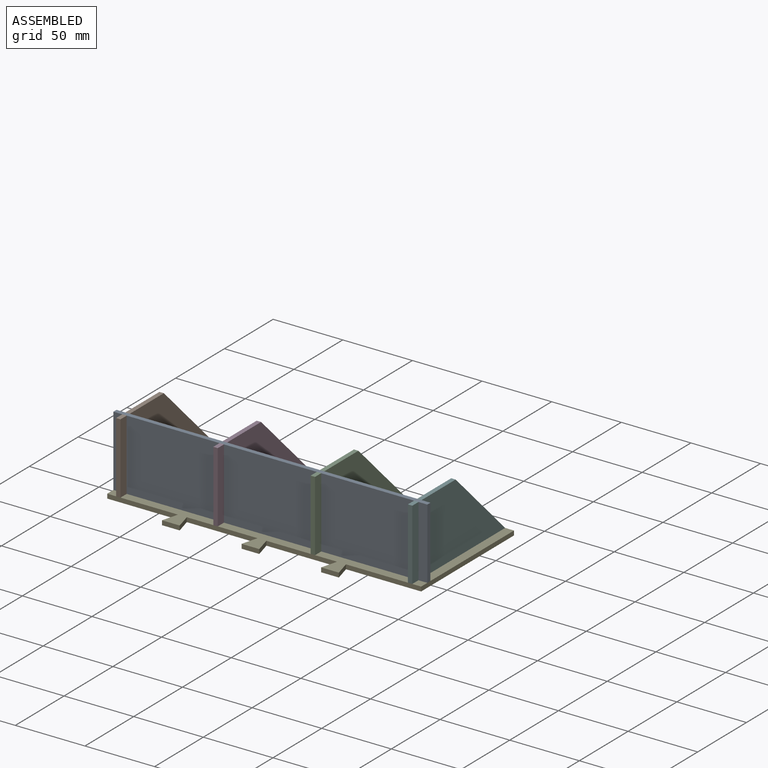
[diagram: assembled view]
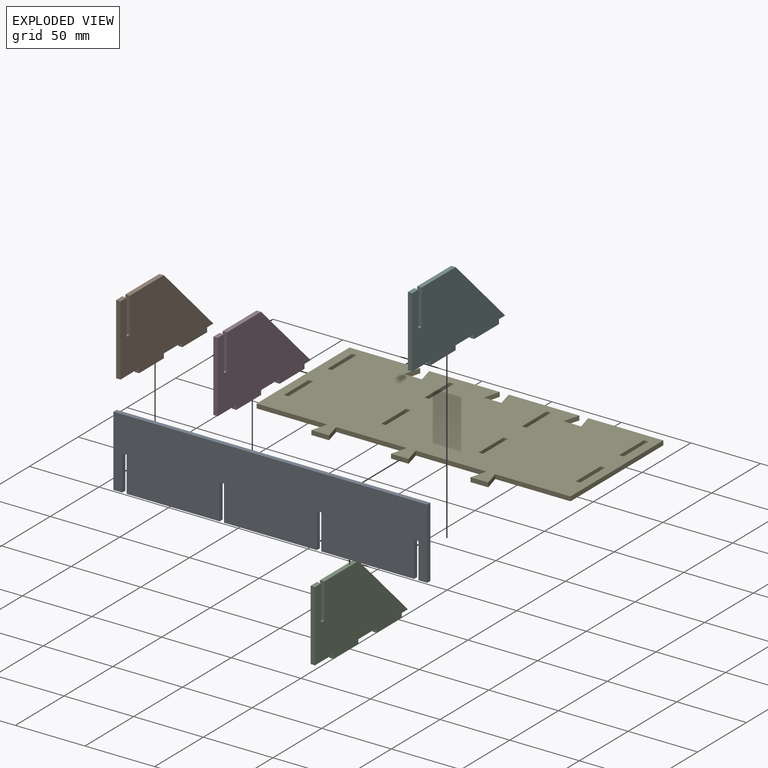
[diagram: exploded view]
GUIDED TOUR — MATED ASSEMBLY (Onshape document ad4fbdfa57b17da3cf891340, AutoMate assembly ad4fbdfa57b17da3cf891340_ecf2326bcfd8ec1f429778cc_b7a0c7b0aa4309209ddc0aee_default)

This assembly has 6 components, labeled P0..P5 below (a component is one placed occurrence of a part; the same part can appear more than once), held together by 2 mates. A mate is a constraint between two components; its type names the relative motion it leaves free:
  FASTENED — locks the two components together rigidly (no relative motion).
Axis/direction vectors are unit vectors and 'through' points are millimeter coordinates, both in the assembly's world frame.

MATES
  1. FASTENED "Fastened 1": P1 <-> P4, direction (0.000, -1.000, 0.000) through (-136.15, -73.71, -41.26) mm
  2. FASTENED "Fastened 2": P0 <-> P1, direction (0.000, 0.000, -1.000) through (-136.15, -84.82, -14.28) mm

ASSEMBLY ORDER
  1. P0 — the base component [order verified]
  2. P5 [order verified]
  3. P4 [order verified]
  4. P3 [order verified]
  5. P2 [order verified]
  6. P1 [order verified]
Order-tag legend:
  [order verified] — this step's position reverses a verified removal order: the component was checked to insert without passing through the ones already placed.

Of the 6 components, 5 carry the full construction recipe — the FeatureScript program that regenerates the part's solid from scratch; the rest are supplied as boundary geometry only.
Each toured component is shown spotlighted twice — in the assembled view, then in the exploded view, where a leader line traces a displaced component back to its assembled socket (saturated green if recipe-attached, orange if geometry-only; every other component desaturated gray) — followed by its recipe or geometry summary and the mates that hold it.
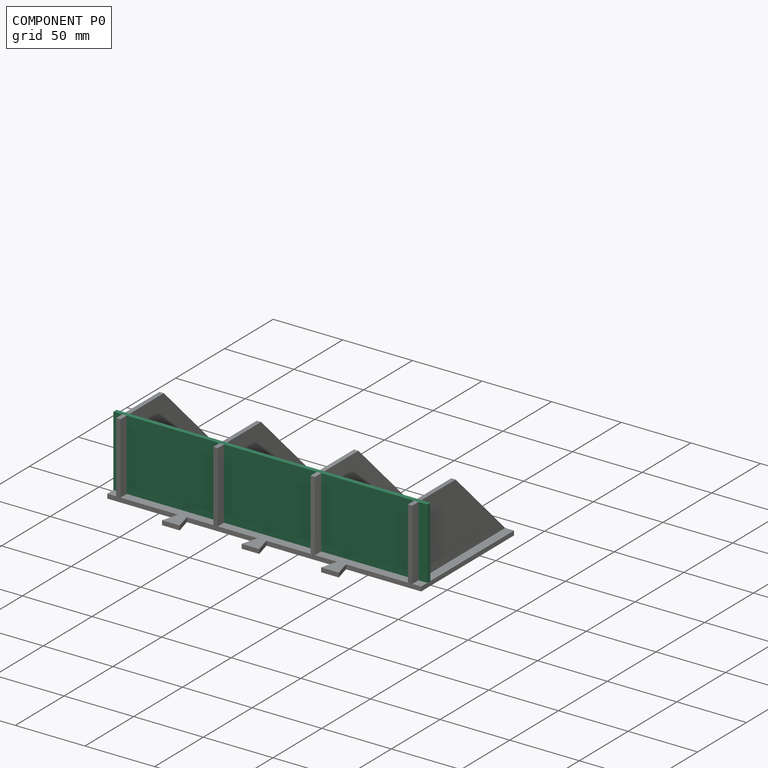
[diagram: component P0 — assembled]
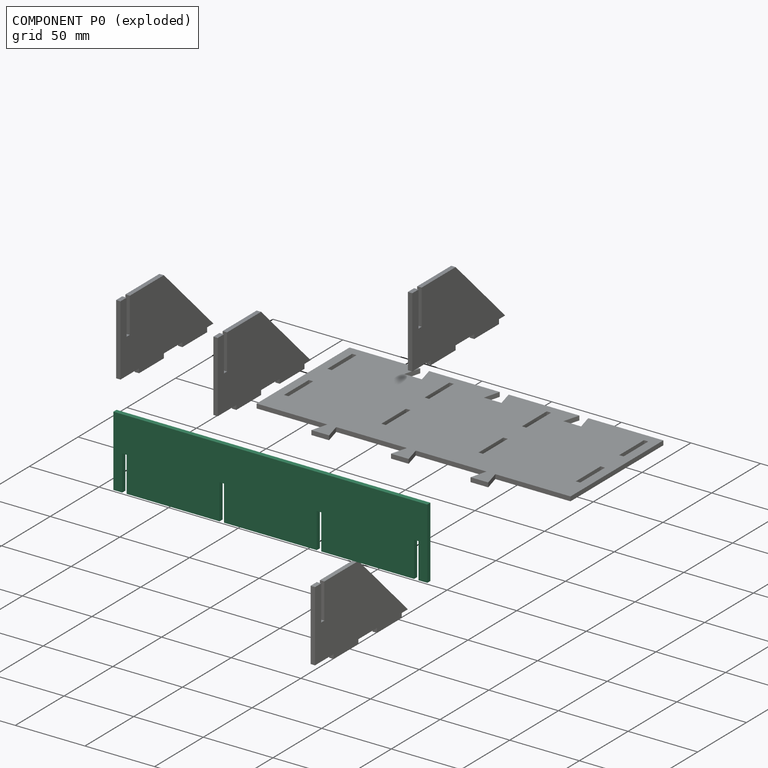
[diagram: component P0 — exploded]
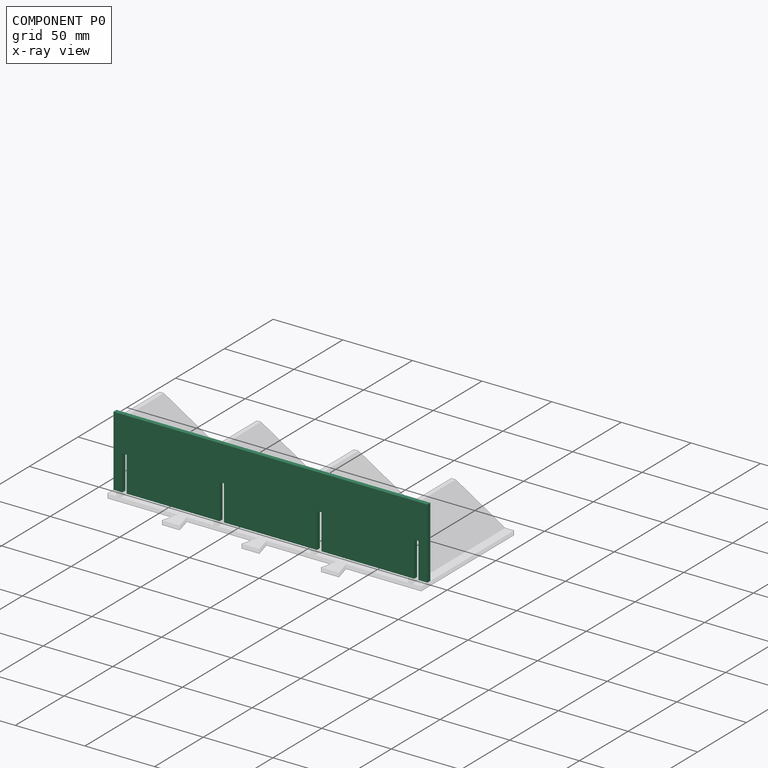
[diagram: component P0 — x-ray view]
COMPONENT P0 — recipe-attached (CADFS 00611595, mesh-verified: the recipe's output STEP matches this component's geometry to below the mesh-comparison resolution (tessellation chordal tolerance ~0.347 mm)).
Held by: FASTENED mate "Fastened 2" to P1.
Construction recipe (FeatureScript — the CAD program that rebuilds this solid; sketch coordinates are in the units given by the * unit suffixes, e.g. mm):

FeatureScript 1511;
import(path : "onshape/std/geometry.fs", version : "1511.0");
import(path : "onshape/std/common.fs", version : "1511.0");
const mm = millimeter;
const VERTEX = EntityType.VERTEX;
const EDGE = EntityType.EDGE;
const FACE = EntityType.FACE;
const BODY = EntityType.BODY;
function v(x, y){return vector(x, y);}
function OD(order){return orderDisambiguation(order);}
function OSD(set){return originalSetDisambiguation(set);}
function TD(topology){return topologyDisambiguation(topology);}
function TDD(query){return trueDependencyDisambiguation(query);}
function sQuery(a, b, c) {return sketchEntityQuery(a, b, c);}

annotation { "Feature Type Name" : "Feature", "Feature Type Description" : "" }
export const myFeature = defineFeature(function(context is Context, id is Id, definition is map)
    precondition{}
    {
        {
            var Q0;
            Q0=qCreatedBy(makeId("Front.planeOp"),FACE);
            var sketch = newSketch(context, id + "F0", { "sketchPlane" : qUnion([Q0])});
            skLineSegment(sketch, "E0.bottom", {"start": v(-112.71, 25.4) * mm, "end": v(112.71, 25.4) * mm});
            skLineSegment(sketch, "E0.top", {"start": v(-112.71, -25.4) * mm, "end": v(112.71, -25.4) * mm});
            skLineSegment(sketch, "E0.left", {"start": v(-112.71, 25.4) * mm, "end": v(-112.71, -25.4) * mm});
            skLineSegment(sketch, "E0.right", {"start": v(112.71, 25.4) * mm, "end": v(112.71, -25.4) * mm});
            skPoint(sketch, "E0.middle", {"position": v(0, 0) * mm});
            skLineSegment(sketch, "E1", {"start": v(-106.36, -25.4) * mm, "end": v(-106.36, 0) * mm});
            skLineSegment(sketch, "E2", {"start": v(-106.36, 0) * mm, "end": v(-103.19, 0) * mm});
            skLineSegment(sketch, "E3", {"start": v(-103.19, 0) * mm, "end": v(-103.19, -25.4) * mm});
            skLineSegment(sketch, "E4", {"start": v(-36.51, -25.4) * mm, "end": v(-36.51, 0) * mm});
            skLineSegment(sketch, "E5", {"start": v(-36.51, 0) * mm, "end": v(-33.34, 0) * mm});
            skLineSegment(sketch, "E6", {"start": v(-33.34, 0) * mm, "end": v(-33.34, -25.4) * mm});
            skLineSegment(sketch, "E7", {"start": v(33.34, -25.4) * mm, "end": v(33.34, 0) * mm});
            skLineSegment(sketch, "E8", {"start": v(33.34, 0) * mm, "end": v(36.51, 0) * mm});
            skLineSegment(sketch, "E9", {"start": v(36.51, 0) * mm, "end": v(36.51, -25.4) * mm});
            skLineSegment(sketch, "E10", {"start": v(103.19, -25.4) * mm, "end": v(103.19, 0) * mm});
            skLineSegment(sketch, "E11", {"start": v(103.19, 0) * mm, "end": v(106.36, 0) * mm});
            skLineSegment(sketch, "E12", {"start": v(106.36, 0) * mm, "end": v(106.36, -25.4) * mm});
            skSolve(sketch);
        }
        {
            var Q0;
            Q0=makeQuery(id+"F0.imprint","IMPRINT",FACE,{"disambiguationData":[TD([[makeQuery(id+"F0.imprint","IMPRINT",EDGE,{"derivedFrom":sQuery(id+"F0.wireOp",EDGE,"E0.bottom")}),-1.0]])]});
            extrude(context, id + "F1", {"entities" : qUnion([Q0]), "depth" : 3.17 * mm, "offsetDistance" : 25.4 * mm});
        }
    });
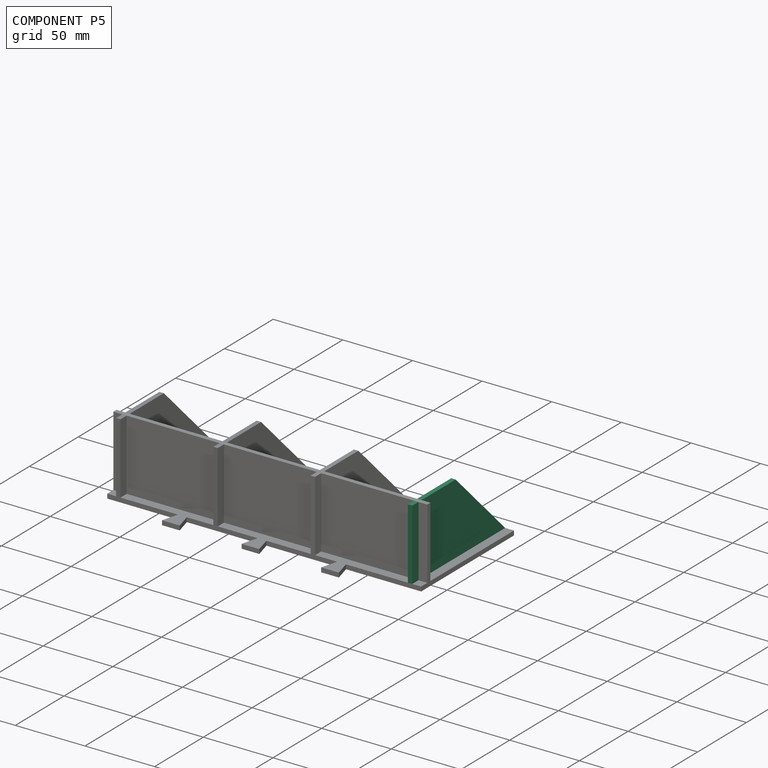
[diagram: component P5 — assembled]
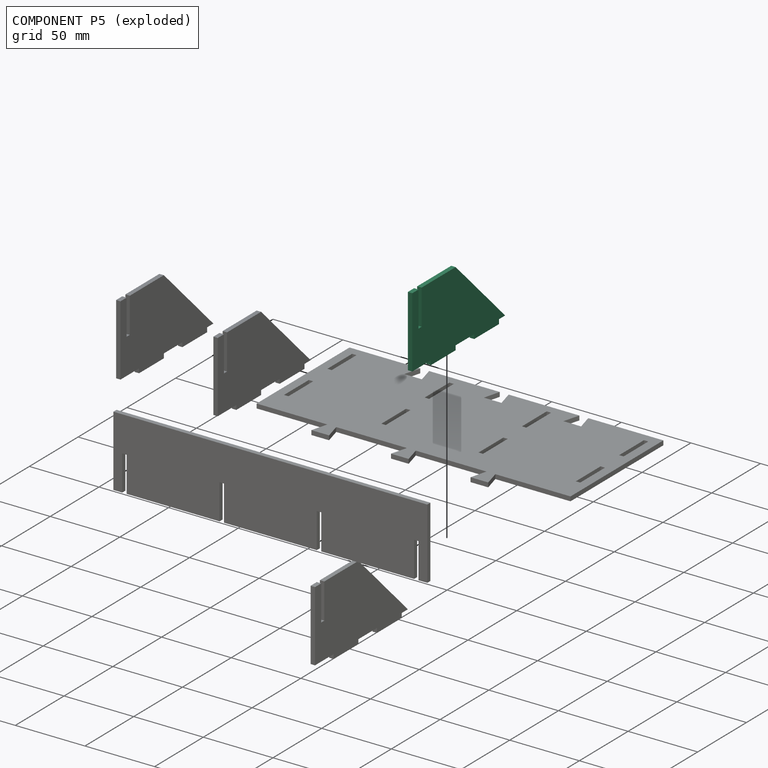
[diagram: component P5 — exploded]
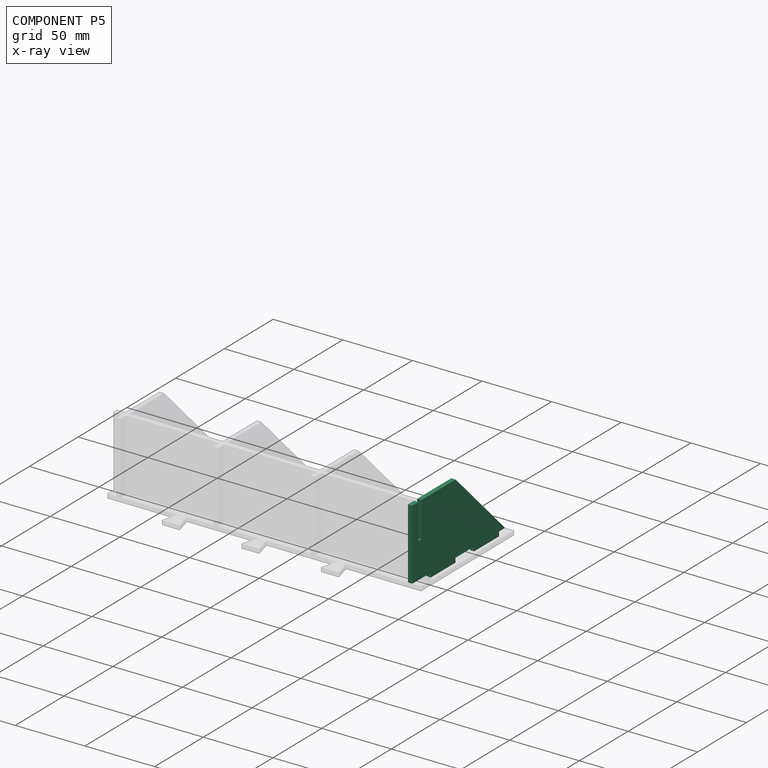
[diagram: component P5 — x-ray view]
COMPONENT P5 — same part as P1 (CADFS 00611596); its construction recipe is shown at P1.
Held by: no mates (free).
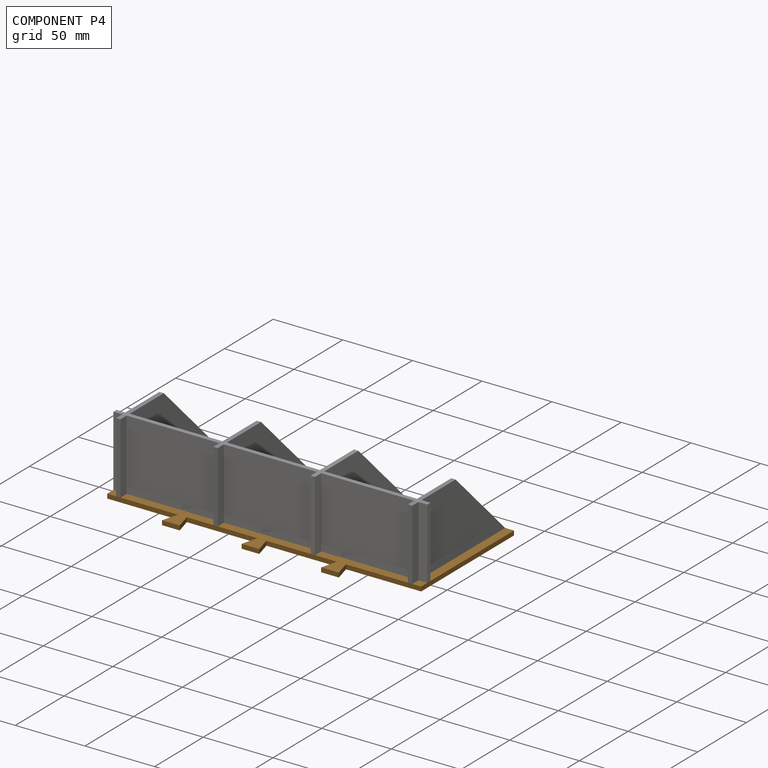
[diagram: component P4 — assembled]
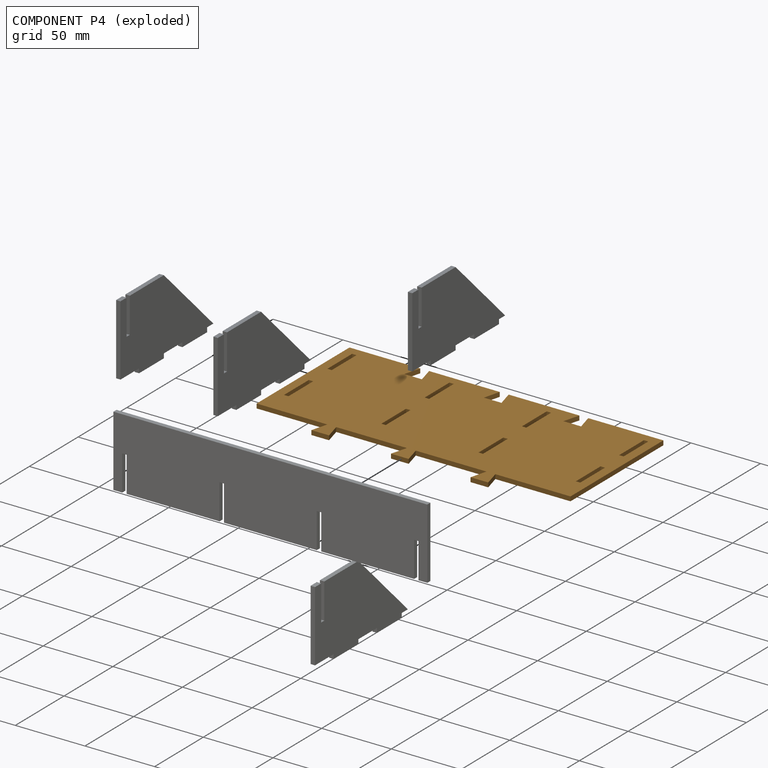
[diagram: component P4 — exploded]
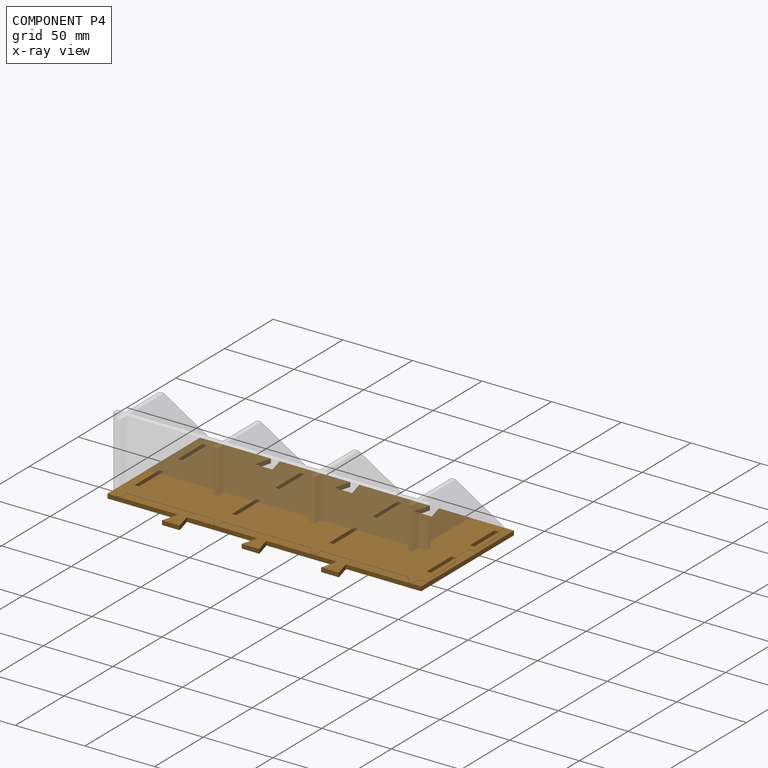
[diagram: component P4 — x-ray view]
COMPONENT P4 — geometry summary (no construction recipe available for this part):
  bounding box: 225.4 x 107.1 x 3.2 mm
  B-rep topology: 1 solid, 62 faces, 360 edges
  volume: 66124 mm^3 (86% of its bounding box)
  symmetry: mirror-symmetric across its z mid-plane
Held by: FASTENED mate "Fastened 1" to P1.
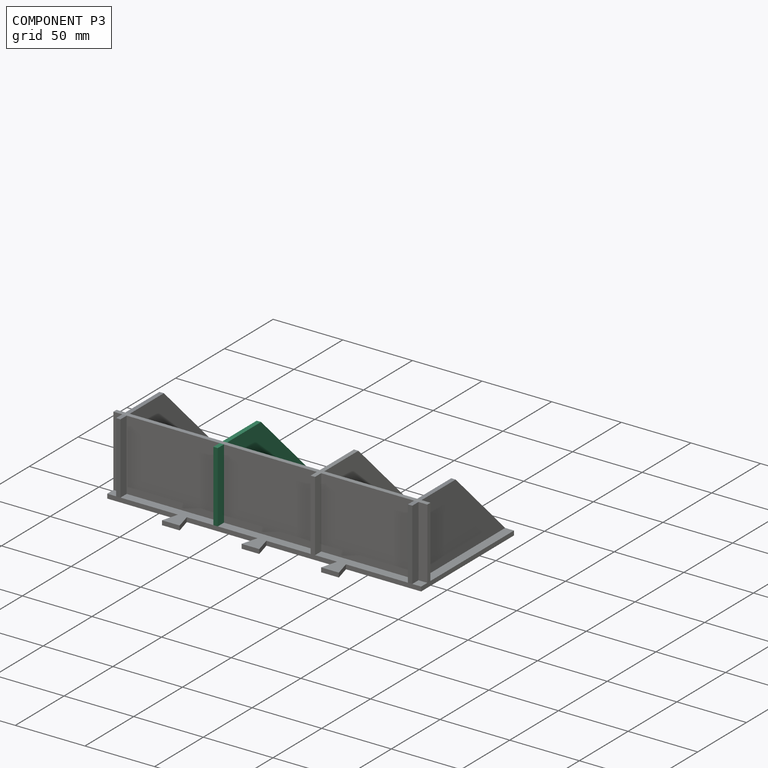
[diagram: component P3 — assembled]
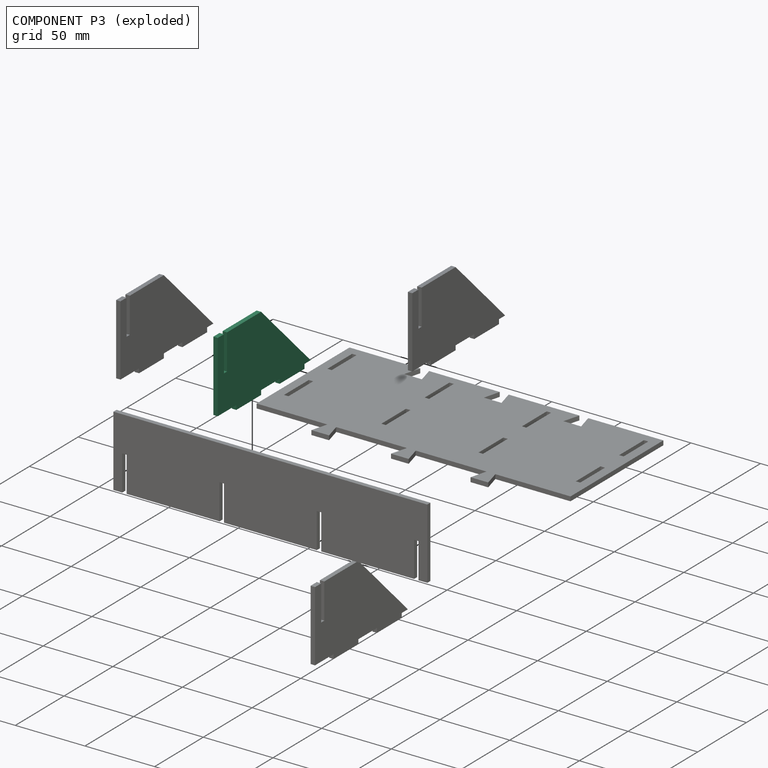
[diagram: component P3 — exploded]
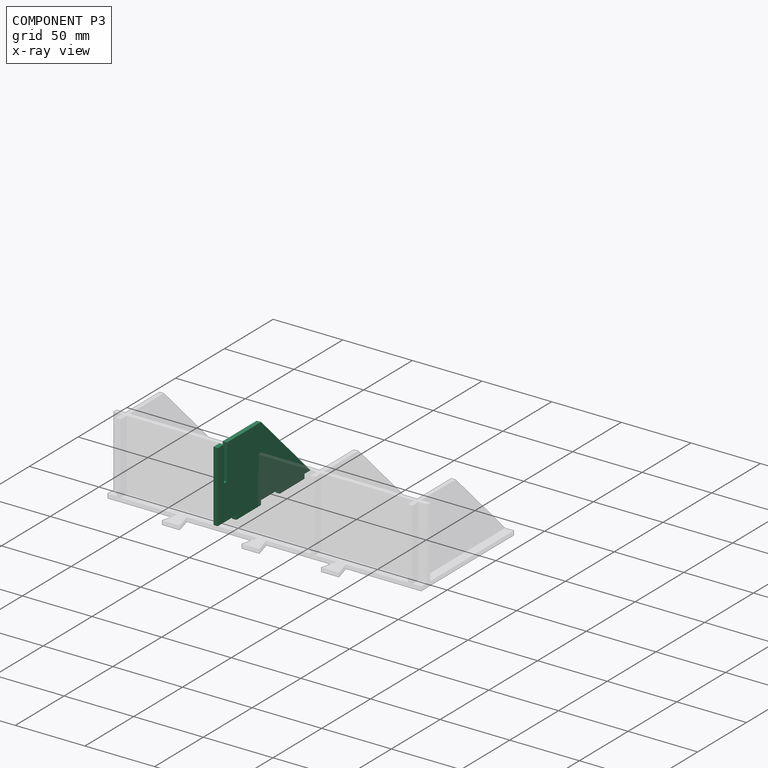
[diagram: component P3 — x-ray view]
COMPONENT P3 — same part as P1 (CADFS 00611596); its construction recipe is shown at P1.
Held by: no mates (free).
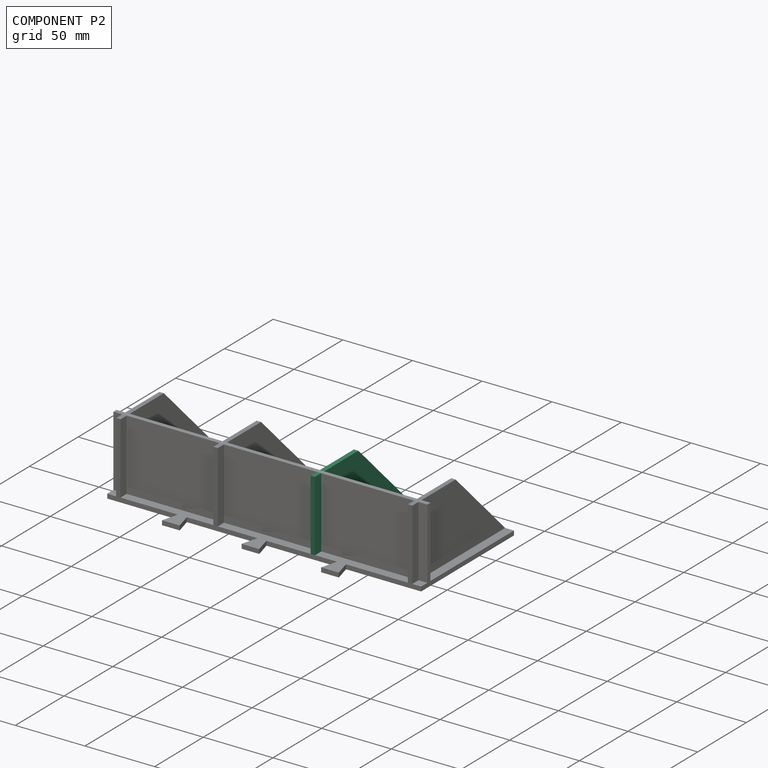
[diagram: component P2 — assembled]
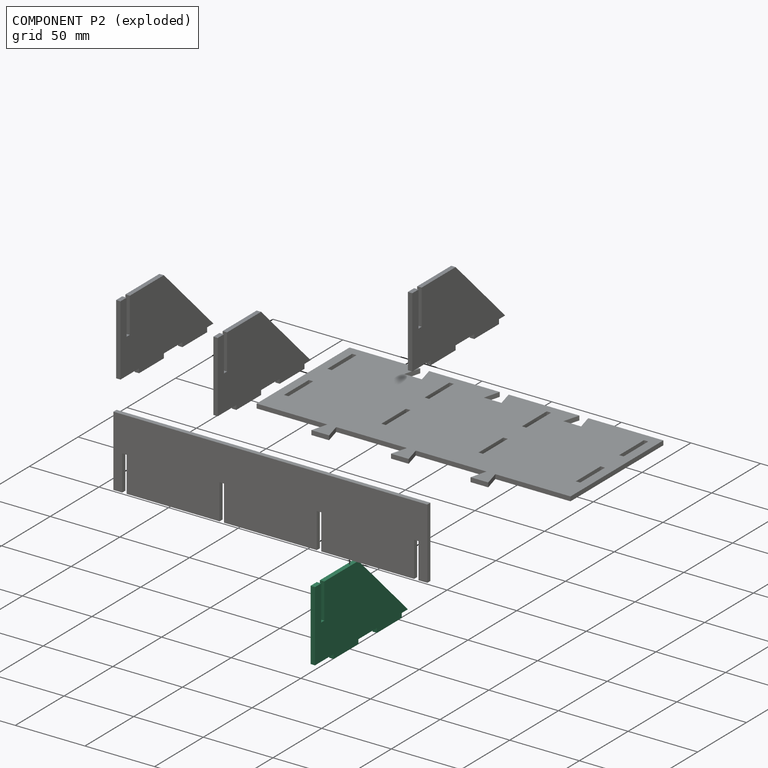
[diagram: component P2 — exploded]
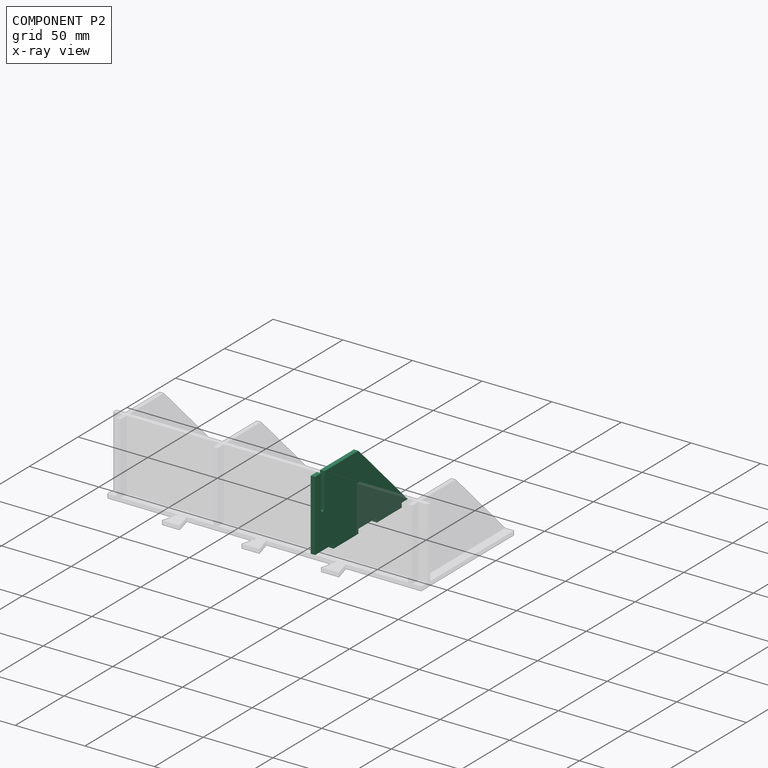
[diagram: component P2 — x-ray view]
COMPONENT P2 — same part as P1 (CADFS 00611596); its construction recipe is shown at P1.
Held by: no mates (free).
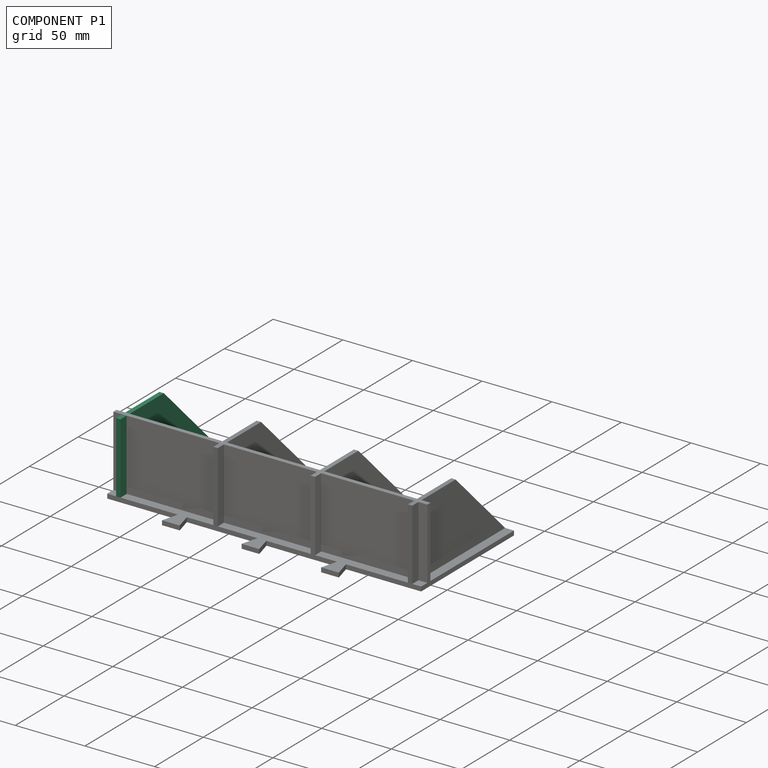
[diagram: component P1 — assembled]
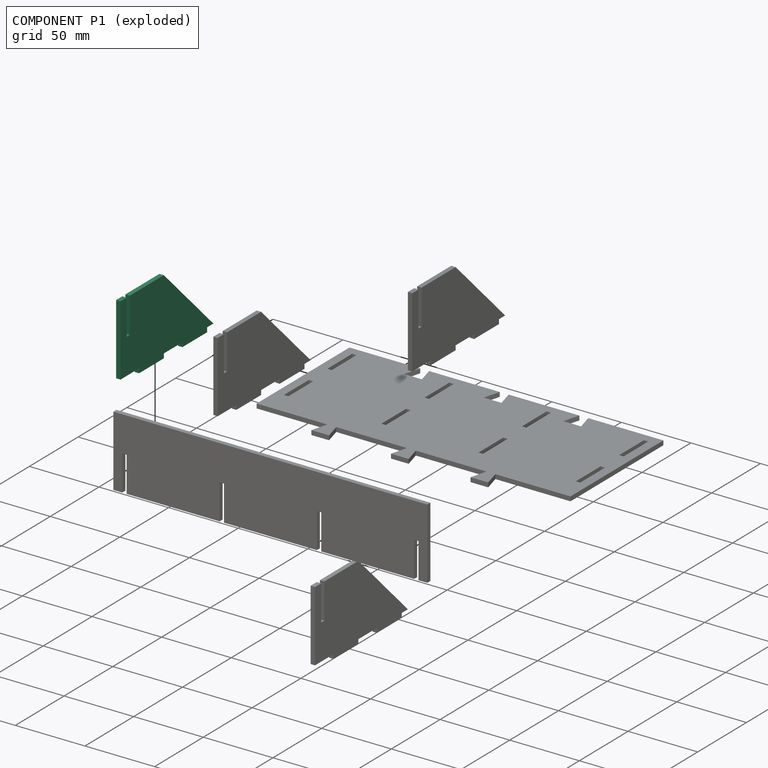
[diagram: component P1 — exploded]
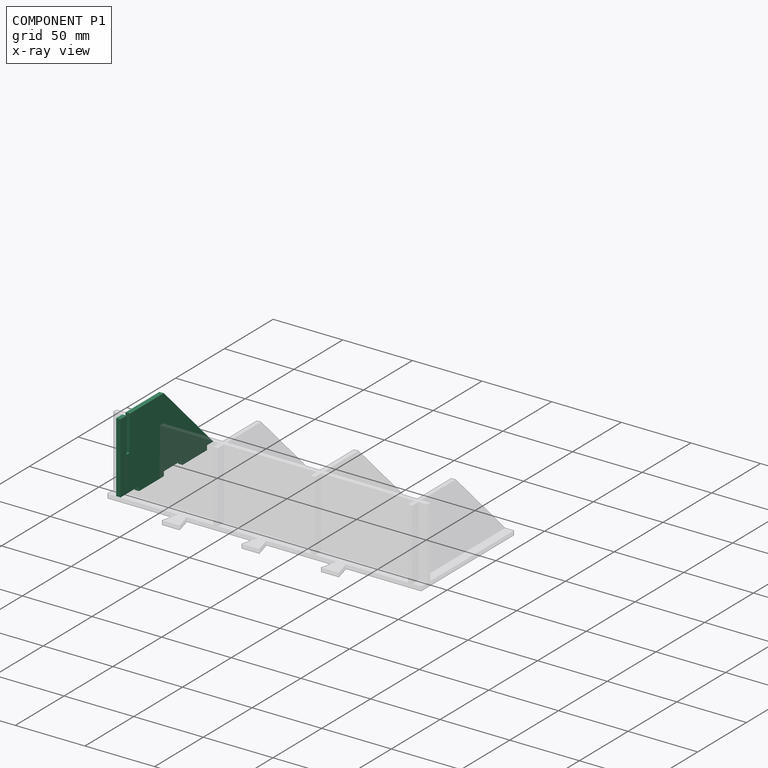
[diagram: component P1 — x-ray view]
COMPONENT P1 — recipe-attached (CADFS 00611596, mesh-verified: the recipe's output STEP matches this component's geometry to below the mesh-comparison resolution (tessellation chordal tolerance ~0.164 mm)).
Held by: FASTENED mate "Fastened 1" to P4; FASTENED mate "Fastened 2" to P0.
Construction recipe (FeatureScript — the CAD program that rebuilds this solid; sketch coordinates are in the units given by the * unit suffixes, e.g. mm):

FeatureScript 1511;
import(path : "onshape/std/geometry.fs", version : "1511.0");
import(path : "onshape/std/common.fs", version : "1511.0");
const mm = millimeter;
const VERTEX = EntityType.VERTEX;
const EDGE = EntityType.EDGE;
const FACE = EntityType.FACE;
const BODY = EntityType.BODY;
function v(x, y){return vector(x, y);}
function OD(order){return orderDisambiguation(order);}
function OSD(set){return originalSetDisambiguation(set);}
function TD(topology){return topologyDisambiguation(topology);}
function TDD(query){return trueDependencyDisambiguation(query);}
function sQuery(a, b, c) {return sketchEntityQuery(a, b, c);}

annotation { "Feature Type Name" : "Feature", "Feature Type Description" : "" }
export const myFeature = defineFeature(function(context is Context, id is Id, definition is map)
    precondition{}
    {
        {
            var Q0;
            Q0=qCreatedBy(makeId("Right.planeOp"),FACE);
            var sketch = newSketch(context, id + "F0", { "sketchPlane" : qUnion([Q0])});
            skLineSegment(sketch, "E0", {"start": v(47.63, -25.4) * mm, "end": v(47.62, 25.4) * mm});
            skLineSegment(sketch, "E1", {"start": v(47.62, 25.4) * mm, "end": v(41.27, 25.4) * mm});
            skLineSegment(sketch, "E2", {"start": v(3.18, 25.4) * mm, "end": v(-47.63, -25.4) * mm});
            skLineSegment(sketch, "E3", {"start": v(-47.63, -25.4) * mm, "end": v(-41.28, -25.4) * mm});
            skLineSegment(sketch, "E4", {"start": v(-41.28, -25.4) * mm, "end": v(-41.28, -28.58) * mm});
            skLineSegment(sketch, "E5", {"start": v(-41.28, -28.58) * mm, "end": v(-15.88, -28.58) * mm});
            skLineSegment(sketch, "E6", {"start": v(-15.88, -28.58) * mm, "end": v(-15.88, -25.4) * mm});
            skLineSegment(sketch, "E7", {"start": v(3.17, -25.4) * mm, "end": v(3.17, -28.58) * mm});
            skLineSegment(sketch, "E8", {"start": v(3.17, -28.58) * mm, "end": v(28.57, -28.58) * mm});
            skLineSegment(sketch, "E9", {"start": v(28.57, -28.58) * mm, "end": v(28.57, -25.4) * mm});
            skLineSegment(sketch, "E10.trimOffspring", {"start": v(28.57, -25.4) * mm, "end": v(47.63, -25.4) * mm});
            skLineSegment(sketch, "E11.trimOffspring", {"start": v(-15.88, -25.4) * mm, "end": v(3.17, -25.4) * mm});
            skLineSegment(sketch, "E12", {"start": v(41.27, 25.4) * mm, "end": v(41.28, 0) * mm});
            skLineSegment(sketch, "E13", {"start": v(41.28, 0) * mm, "end": v(38.1, 0) * mm});
            skLineSegment(sketch, "E14", {"start": v(38.1, 0) * mm, "end": v(38.1, 25.4) * mm});
            skLineSegment(sketch, "E15.trimOffspring", {"start": v(38.1, 25.4) * mm, "end": v(3.17, 25.4) * mm});
            skSolve(sketch);
        }
        {
            var Q0;
            Q0 = qSketchRegion(id + "F0", true);
            extrude(context, id + "F1", {"entities" : qUnion([Q0]), "endBound" : BoundingType.SYMMETRIC, "depth" : 3.17 * mm, "offsetDistance" : 25.4 * mm});
        }
    });
PROVENANCE & LICENSES
Assembly (occurrences, transforms, mates, per-part STEP geometry): AutoMate dataset, Zenodo record 7776208, CC0.
Construction recipes: CADFS (HuggingFace VladPyatov/CADFS, CC-BY-4.0, layered over the ABC dataset), FeatureScript reconstruction programs keyed by ABC model id.
Join: ABC meta listings map ABC model id -> Onshape documentId; within a shared document, parts are matched by geometric signature (bounding-box dims + volume at 0.1% relative tolerance, exact B-rep face/solid counts).
Verification: 5 of this assembly's 6 components carry a recipe attachment, and every attachment is mesh-verified: the CADFS STEP and the AutoMate member STEP were compared as meshes in their shared local frame (symmetric sampled-point-to-mesh distance); worst across the 5 attachments: below the mesh-comparison resolution (tessellation chordal tolerance ~0.347 mm) on a 231 mm part.
Renders: orthographic iso camera (az 35 / el 25); the floor grid conveys scale (grid pitch printed in each image; no ruler). In the exploded view each component is displaced by its stored offset vector: the offsets alone carry the explosion direction (mate normal/axis signs are not orientation cues and do not encode it), and separation distances are assigned per mate-chain, not proportionally to assembly-order depth.
